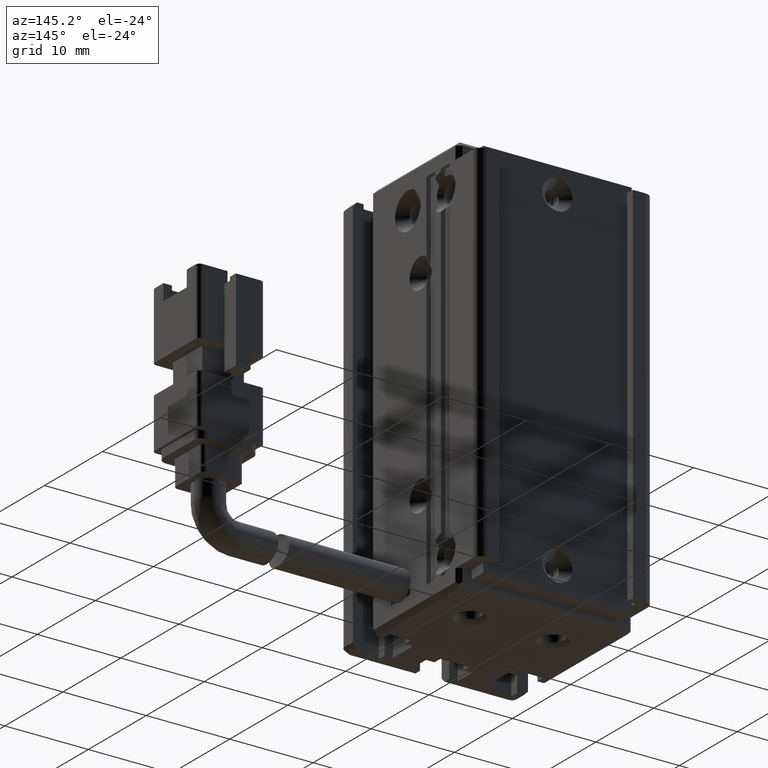
[diagram: clean part render]
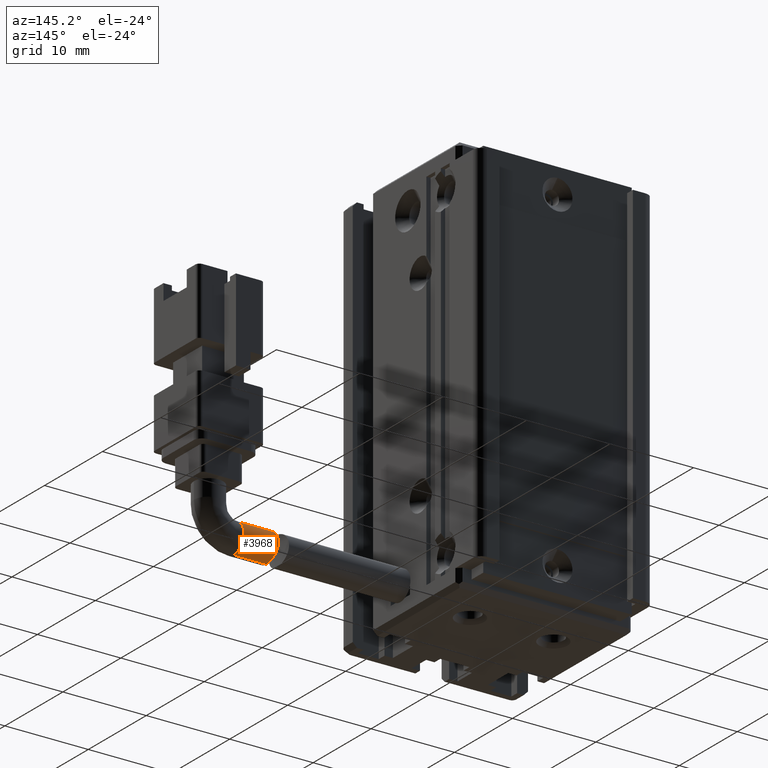
[diagram: same view with one face highlighted and labeled with its STEP entity id]
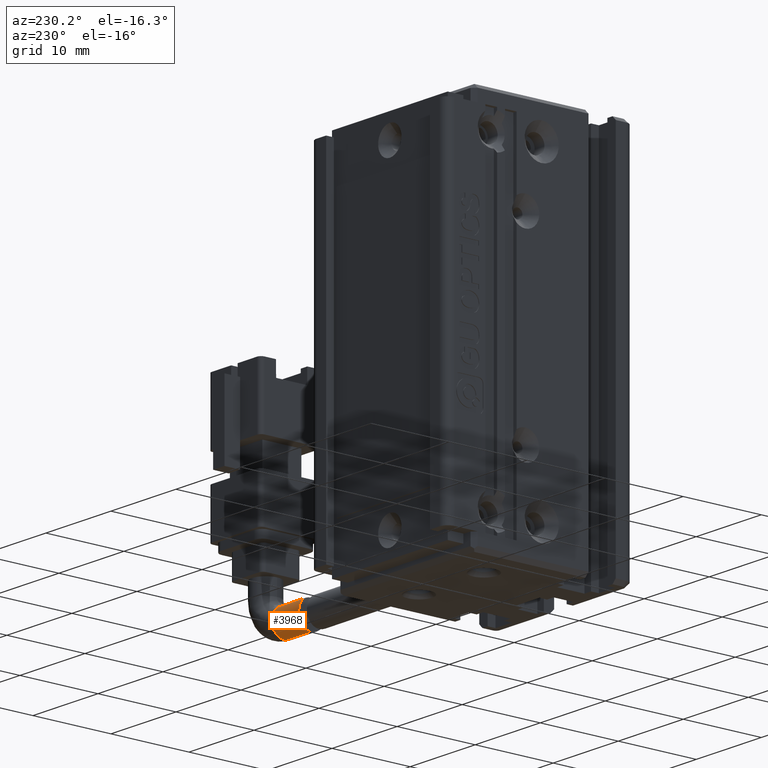
[diagram: same view with one face highlighted and labeled with its STEP entity id]
A machine part, auxiliary view. The second image highlights one B-rep face of the part: STEP entity #3968.
A second angle (auxiliary view) of the same face is appended — the face is thin or edge-on in the first view.
In plain terms, the highlighted cylindrical surface (edge-blend (fillet) strip) has radius 1.75 mm, axis along (-1, -0, -0).
Its self-contained STEP definition (entity closure, byte-faithful):
#1570 = CARTESIAN_POINT ( 'NONE',  ( 71.42537974683536100, 21.49073232304857600, -137.2000000000000200 ) ) ;
#1847 = ORIENTED_EDGE ( 'NONE', *, *, #27156, .F. ) ;
#1857 = EDGE_CURVE ( 'NONE', #31599, #15912, #12726, .T. ) ;
#2160 = CARTESIAN_POINT ( 'NONE',  ( 67.40417489604252000, 22.55898536363726900, -136.8408297553675100 ) ) ;
#2299 = CARTESIAN_POINT ( 'NONE',  ( 67.47136508411077200, 21.60678308936699600, -137.2000000000001300 ) ) ;
#2305 = B_SPLINE_CURVE_WITH_KNOTS ( 'NONE', 3,
 ( #2428, #2299, #20258, #8326, #38019, #4917, #37892, #2160, #23128, #5188, #26130, #29143, #23392, #5309, #26277, #8459, #11407, #32288, #35275, #38271, #20375, #20634, #23891, #17759, #5938, #26896, #2939, #23644 ),
 .UNSPECIFIED., .F., .F.,
 ( 4, 2, 2, 2, 2, 2, 2, 2, 2, 2, 2, 2, 2, 4 ),
 ( 0.005489779578333653700, 0.005832890876639693400, 0.006176002174945732300, 0.006519113473251771100, 0.006862224771557810800, 0.007548447368169828600, 0.008234669964781846400, 0.008577781263087815000, 0.008920892561393781900, 0.009607115158005719000, 0.009950226456311654600, 0.01029333775461759000, 0.01063644905292352600, 0.01097956035122946300 ),
 .UNSPECIFIED. ) ;
#2428 = CARTESIAN_POINT ( 'NONE',  ( 67.47136508411073000, 21.49073232304856200, -137.1999999999999900 ) ) ;
#2939 = CARTESIAN_POINT ( 'NONE',  ( 67.44984085051336800, 21.60680804937865000, -133.6999999999999600 ) ) ;
#3006 = ORIENTED_EDGE ( 'NONE', *, *, #22366, .F. ) ;
#3715 = CYLINDRICAL_SURFACE ( 'NONE', #19970, 1.750000000000001600 ) ;
#3968 = ADVANCED_FACE ( 'NONE', ( #25326 ), #3715, .T. ) ;
#4025 = VERTEX_POINT ( 'NONE', #7355 ) ;
#4481 = DIRECTION ( 'NONE',  ( 0.0000000000000000000, 0.0000000000000000000, 1.000000000000000000 ) ) ;
#4917 = CARTESIAN_POINT ( 'NONE',  ( 67.43698678606547500, 22.26849321272066400, -137.0218643407056600 ) ) ;
#5188 = CARTESIAN_POINT ( 'NONE',  ( 67.35205659423870400, 22.88985874260199100, -136.5255146834794600 ) ) ;
#5309 = CARTESIAN_POINT ( 'NONE',  ( 67.24536993501358500, 23.24083235749495200, -135.3370683193368200 ) ) ;
#5938 = CARTESIAN_POINT ( 'NONE',  ( 67.43295112024853200, 21.94802212828940200, -133.7569097797770900 ) ) ;
#7089 = DIRECTION ( 'NONE',  ( -1.000000000000000000, -3.304235192336770000E-015, -8.579261317967046800E-031 ) ) ;
#7091 = CARTESIAN_POINT ( 'NONE',  ( 67.47136508411073000, 21.49073232304856200, -137.1999999999999900 ) ) ;
#7355 = CARTESIAN_POINT ( 'NONE',  ( 67.44984085051338200, 21.49073232304856200, -133.6999999999999900 ) ) ;
#8326 = CARTESIAN_POINT ( 'NONE',  ( 67.46031785294418600, 21.94513311441134800, -137.1438409548440800 ) ) ;
#8459 = CARTESIAN_POINT ( 'NONE',  ( 67.24724706289268300, 23.18459100183054700, -134.9955721427109000 ) ) ;
#11340 = CIRCLE ( 'NONE', #32595, 1.750000000000001600 ) ;
#11407 = CARTESIAN_POINT ( 'NONE',  ( 67.25170846070962200, 23.15140324081145500, -134.8861680324227500 ) ) ;
#11539 = DIRECTION ( 'NONE',  ( 1.000000000000000000, 3.304235192336770000E-015, 8.579261317967046800E-031 ) ) ;
#11568 = LINE ( 'NONE', #33039, #38640 ) ;
#11654 = ORIENTED_EDGE ( 'NONE', *, *, #1857, .T. ) ;
#12726 = LINE ( 'NONE', #1570, #18783 ) ;
#12842 = CARTESIAN_POINT ( 'NONE',  ( 71.42537974683536100, 21.49073232304856900, -137.2000000000000200 ) ) ;
#15912 = VERTEX_POINT ( 'NONE', #7091 ) ;
#17759 = CARTESIAN_POINT ( 'NONE',  ( 67.42333103305581700, 22.05694026214441900, -133.7901962318933300 ) ) ;
#18006 = VERTEX_POINT ( 'NONE', #32366 ) ;
#18783 = VECTOR ( 'NONE', #25548, 1000.000000000000000 ) ;
#19970 = AXIS2_PLACEMENT_3D ( 'NONE', #33808, #7089, #4481 ) ;
#20130 = CARTESIAN_POINT ( 'NONE',  ( 71.42537974683536100, 21.49073232304857600, -135.4500000000000200 ) ) ;
#20258 = CARTESIAN_POINT ( 'NONE',  ( 67.46908930745947000, 21.72083805389395300, -137.1885708533534700 ) ) ;
#20375 = CARTESIAN_POINT ( 'NONE',  ( 67.35705463766365100, 22.55897775111894500, -134.0592194820502800 ) ) ;
#20634 = CARTESIAN_POINT ( 'NONE',  ( 67.38588623058109300, 22.37010254569658200, -133.9327239027712400 ) ) ;
#22366 = EDGE_CURVE ( 'NONE', #18006, #4025, #11568, .T. ) ;
#23128 = CARTESIAN_POINT ( 'NONE',  ( 67.39139769048792100, 22.64866193278273700, -136.7670594754866300 ) ) ;
#23245 = DIRECTION ( 'NONE',  ( -1.000000000000000000, -3.304235192336770000E-015, -8.579261317967046800E-031 ) ) ;
#23392 = CARTESIAN_POINT ( 'NONE',  ( 67.25727913656172100, 23.24053022228710900, -135.6804823031922400 ) ) ;
#23644 = CARTESIAN_POINT ( 'NONE',  ( 67.44984085051338200, 21.49073232304856200, -133.6999999999999900 ) ) ;
#23891 = CARTESIAN_POINT ( 'NONE',  ( 67.39984329400940100, 22.26783481747914500, -133.8778512500192600 ) ) ;
#23949 = EDGE_CURVE ( 'NONE', #15912, #4025, #2305, .T. ) ;
#25326 = FACE_OUTER_BOUND ( 'NONE', #33632, .T. ) ;
#25548 = DIRECTION ( 'NONE',  ( -1.000000000000000000, -3.304235192336770000E-015, -8.579261317967046800E-031 ) ) ;
#26130 = CARTESIAN_POINT ( 'NONE',  ( 67.32343363472472200, 23.01980749161757000, -136.3310113894276300 ) ) ;
#26277 = CARTESIAN_POINT ( 'NONE',  ( 67.24403675424812800, 23.22942088000613100, -135.2206007779651000 ) ) ;
#26896 = CARTESIAN_POINT ( 'NONE',  ( 67.44624549987466400, 21.72301278747130500, -133.7116921315142700 ) ) ;
#27156 = EDGE_CURVE ( 'NONE', #31599, #18006, #11340, .T. ) ;
#29143 = CARTESIAN_POINT ( 'NONE',  ( 67.27616060327723300, 23.19423489987271100, -135.9107937827152500 ) ) ;
#31599 = VERTEX_POINT ( 'NONE', #12842 ) ;
#32288 = CARTESIAN_POINT ( 'NONE',  ( 67.27330235168545900, 23.01925002648934900, -134.5673499168243300 ) ) ;
#32366 = CARTESIAN_POINT ( 'NONE',  ( 71.42537974683536100, 21.49073232304856900, -133.7000000000000200 ) ) ;
#32424 = DIRECTION ( 'NONE',  ( 0.0000000000000000000, 0.0000000000000000000, -1.000000000000000000 ) ) ;
#32579 = ORIENTED_EDGE ( 'NONE', *, *, #23949, .T. ) ;
#32595 = AXIS2_PLACEMENT_3D ( 'NONE', #20130, #11539, #32424 ) ;
#33039 = CARTESIAN_POINT ( 'NONE',  ( 71.42537974683536100, 21.49073232304857600, -133.7000000000000200 ) ) ;
#33632 = EDGE_LOOP ( 'NONE', ( #1847, #11654, #32579, #3006 ) ) ;
#33808 = CARTESIAN_POINT ( 'NONE',  ( 71.42537974683536100, 21.49073232304857600, -135.4500000000000200 ) ) ;
#35275 = CARTESIAN_POINT ( 'NONE',  ( 67.29863038595921400, 22.89020791479749700, -134.3745412688684000 ) ) ;
#37892 = CARTESIAN_POINT ( 'NONE',  ( 67.42693556278865700, 22.36894299564884400, -136.9679980176778100 ) ) ;
#38019 = CARTESIAN_POINT ( 'NONE',  ( 67.45371154829165100, 22.05656144212894200, -137.1099719621386200 ) ) ;
#38271 = CARTESIAN_POINT ( 'NONE',  ( 67.34206032523766800, 22.64680295575514200, -134.1312272577276600 ) ) ;
#38640 = VECTOR ( 'NONE', #23245, 1000.000000000000000 ) ;